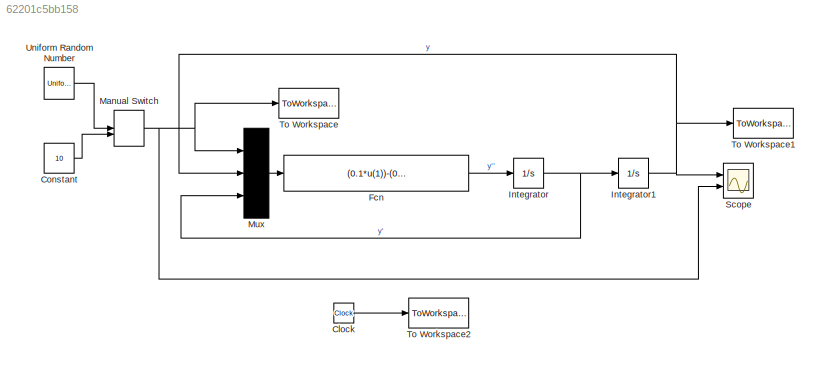
MODEL slx_62201c5bb158
KIND model
CONFIG AbsTol = auto
CONFIG FixedStep = auto
CONFIG MaxStep = auto
CONFIG MinStep = auto
CONFIG RelTol = 1e-3
CONFIG SampleTimeConstraint = Unconstrained
CONFIG Solver = VariableStepAuto
CONFIG SolverMode = Auto
CONFIG SolverName = VariableStepAuto
CONFIG StartTime = 0.0
CONFIG StopTime = 2500
BLOCK [Clock] Clock
BLOCK [Constant] Constant
  Value = 10
BLOCK [Fcn] Fcn 
  Expr = (0.1*u(1))-(0.1*u(2)^2)-(u(3)*(u(2)^2+1))
BLOCK [Integrator] Integrator
  Ports = [1, 1]
BLOCK [Integrator] Integrator1
  Ports = [1, 1]
BLOCK [ManualSwitch] Manual Switch
BLOCK [Mux] Mux
  DisplayOption = bar
  Inputs = 3
  Ports = [3, 1]
BLOCK [Scope] Scope
  NumInputPorts = 2
  Ports = [2]
  ScopeSpecificationString = Simulink.scopes.TimeScopeBlockCfg('CurrentConfiguration', extmgr.ConfigurationSet(extmgr.Configuration('Core','General UI',true),extmgr.Configuration('Core','Source UI',true),extmgr.Configuration('Sources','WiredSimulink',true),extmgr.Configuration('Visuals','Time Domain',true,'SerializedDisplays',{struct('MinYLimReal','-1.16837','MaxYLimReal','10.5153','YLabelReal','','MinYLimMag','0.00000','MaxY...<+1408ch>
BLOCK [ToWorkspace] To Workspace
  FixptAsFi = on
  MaxDataPoints = inf
  Ports = [1]
  SampleTime = tm
  Save2DSignal = 3-D array (concatenate along third dimension)
  VariableName = Entrada
BLOCK [ToWorkspace] To Workspace1
  FixptAsFi = on
  MaxDataPoints = inf
  Ports = [1]
  SampleTime = tm
  Save2DSignal = 3-D array (concatenate along third dimension)
  VariableName = Salida
BLOCK [ToWorkspace] To Workspace2
  FixptAsFi = on
  MaxDataPoints = inf
  Ports = [1]
  SampleTime = tm
  Save2DSignal = 3-D array (concatenate along third dimension)
  VariableName = Tiempo
BLOCK [UniformRandomNumber] Uniform Random Number
  Maximum = 10
  Minimum = 0
  SampleTime = 100
LINE Clock:1 -> To Workspace2:1
LINE Constant:1 -> Manual Switch:2
LINE Fcn :1 -> Integrator:1
NET Integrator1:1 -> Mux:2, Scope:1, To Workspace1:1
NET Integrator:1 -> Integrator1:1, Mux:3
NET Manual Switch:1 -> Mux:1, Scope:2, To Workspace:1
LINE Mux:1 -> Fcn :1
LINE Uniform Random Number:1 -> Manual Switch:1
note: NET lines group one-source signal fan-out (src -> all destinations, sorted); 1:1 wires keep LINE
